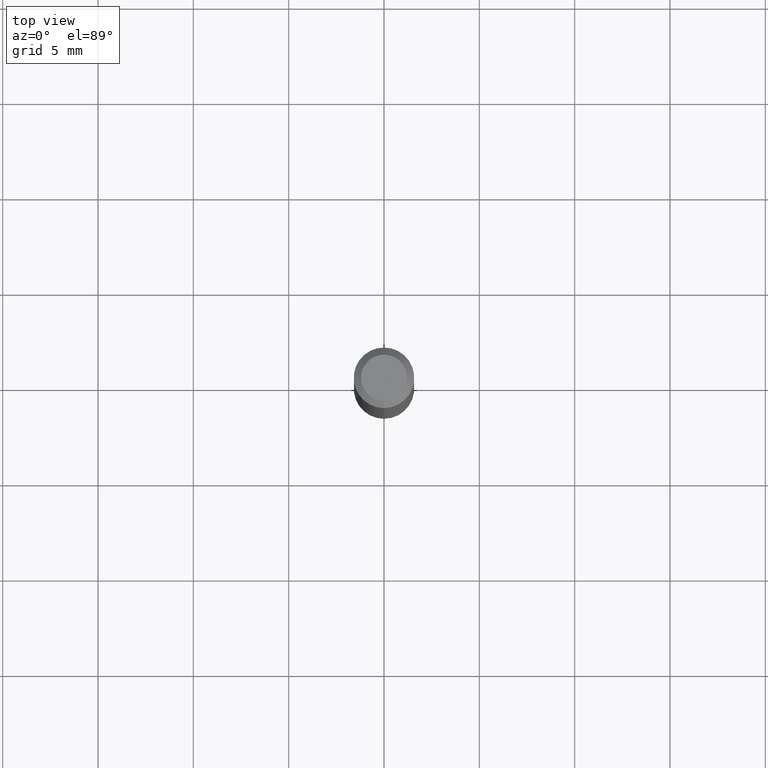
[diagram: clean part render]
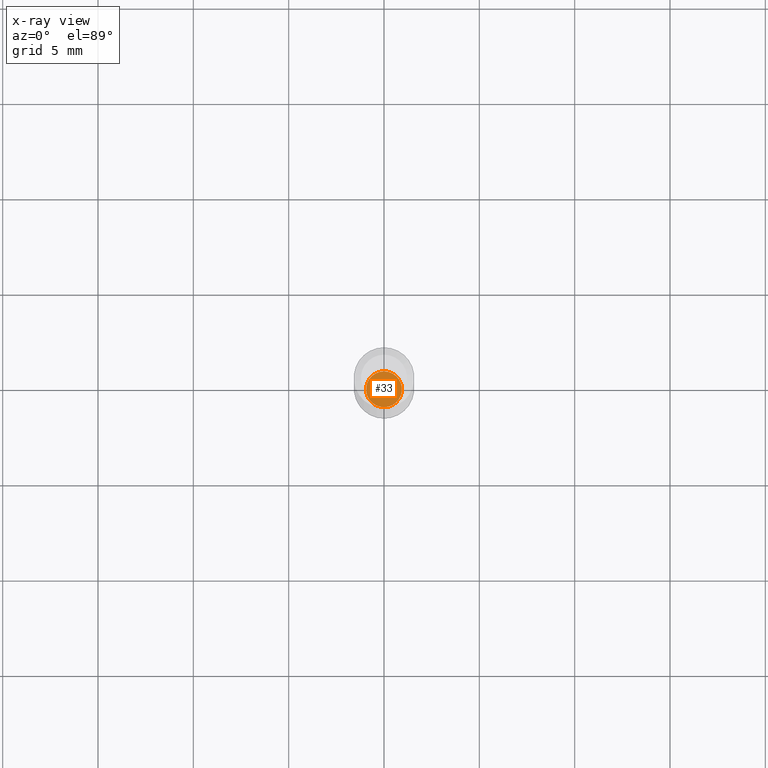
[diagram: x-ray — body ghosted, one internal face saturated and labeled with its STEP entity id]
A machine part, top view, then the same camera in x-ray: the body is ghosted and one INTERNAL B-rep face — a face not visible from any outside direction — is saturated and labeled: STEP entity #33.
In plain terms, the highlighted planar face has unit normal (-0, 0, 1).
Its self-contained STEP definition (entity closure, byte-faithful):
#28 = DIRECTION ( 'NONE',  ( -6.982962677686265133E-15, -1.000000000000000000, 0.000000000000000000 ) ) ;
#33 = ADVANCED_FACE ( 'NONE', ( #417 ), #372, .F. ) ;
#57 = DIRECTION ( 'NONE',  ( -6.982962677686265922E-15, -1.000000000000000000, 3.491449284820591431E-15 ) ) ;
#174 = EDGE_CURVE ( 'NONE', #329, #384, #344, .T. ) ;
#184 = DIRECTION ( 'NONE',  ( -6.982962677686265133E-15, -1.000000000000000000, 0.000000000000000000 ) ) ;
#205 = ORIENTED_EDGE ( 'NONE', *, *, #174, .F. ) ;
#211 = EDGE_CURVE ( 'NONE', #384, #329, #294, .T. ) ;
#237 = CARTESIAN_POINT ( 'NONE',  ( 2.646771690706718205E-16, 0.03699999999999523809, -1.387500000000000178 ) ) ;
#267 = DIRECTION ( 'NONE',  ( -2.445491189389452753E-29, 3.491449284820591825E-15, 1.000000000000000000 ) ) ;
#268 = AXIS2_PLACEMENT_3D ( 'NONE', #410, #494, #57 ) ;
#294 = CIRCLE ( 'NONE', #412, 0.03700000000000008837 ) ;
#329 = VERTEX_POINT ( 'NONE', #390 ) ;
#344 = CIRCLE ( 'NONE', #370, 0.03700000000000008837 ) ;
#350 = ORIENTED_EDGE ( 'NONE', *, *, #211, .F. ) ;
#363 = CARTESIAN_POINT ( 'NONE',  ( 3.393119025277865852E-29, -4.844385882688571843E-15, -1.387500000000000178 ) ) ;
#370 = AXIS2_PLACEMENT_3D ( 'NONE', #363, #482, #184 ) ;
#372 = PLANE ( 'NONE',  #268 ) ;
#384 = VERTEX_POINT ( 'NONE', #237 ) ;
#390 = CARTESIAN_POINT ( 'NONE',  ( -2.583696190743585172E-16, -0.03700000000000493172, -1.387500000000000178 ) ) ;
#410 = CARTESIAN_POINT ( 'NONE',  ( 3.393119025277865852E-29, -4.844385882688571843E-15, -1.387500000000000178 ) ) ;
#412 = AXIS2_PLACEMENT_3D ( 'NONE', #466, #267, #28 ) ;
#417 = FACE_OUTER_BOUND ( 'NONE', #483, .T. ) ;
#466 = CARTESIAN_POINT ( 'NONE',  ( 3.393119025277865852E-29, -4.844385882688571843E-15, -1.387500000000000178 ) ) ;
#482 = DIRECTION ( 'NONE',  ( -2.445491189389452753E-29, 3.491449284820591825E-15, 1.000000000000000000 ) ) ;
#483 = EDGE_LOOP ( 'NONE', ( #205, #350 ) ) ;
#494 = DIRECTION ( 'NONE',  ( -2.445491189389452753E-29, 3.491449284820591431E-15, 1.000000000000000000 ) ) ;